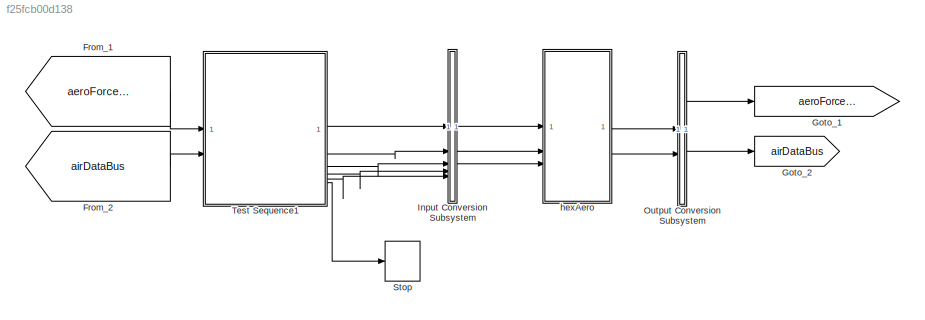
MODEL slx_f25fcb00d138
KIND model
CONFIG AbsTol = auto
CONFIG EnableMultiTasking = off
CONFIG FixedStep = auto
CONFIG MaxStep = auto
CONFIG MinStep = auto
CONFIG RelTol = 1e-3
CONFIG SampleTimeConstraint = Unconstrained
CONFIG SolverName = VariableStepAuto
CONFIG StartTime = 0.0
CONFIG StopTime = inf
BLOCK [From] From_1
  GotoTag = aeroForcesMomentsBus
BLOCK [From] From_2
  GotoTag = airDataBus
BLOCK [Goto] Goto_1
  GotoTag = aeroForcesMomentsBus
BLOCK [Goto] Goto_2
  GotoTag = airDataBus
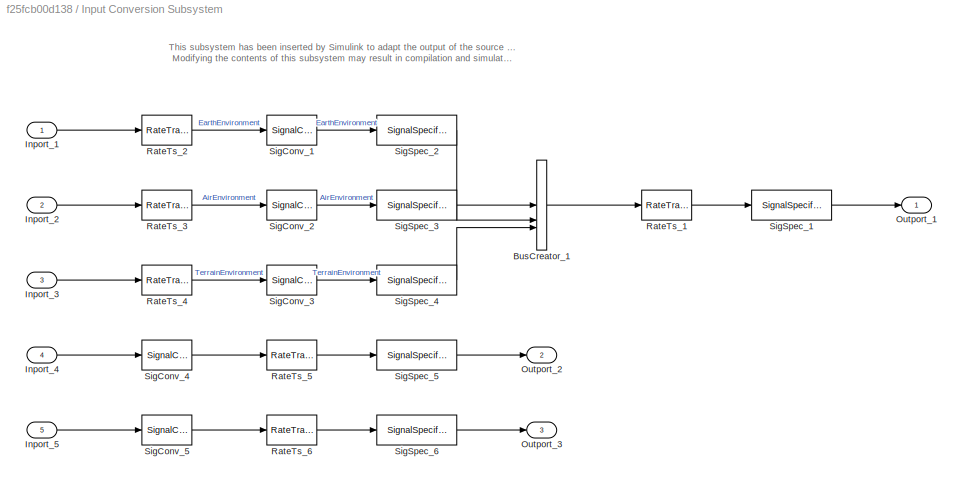
BLOCK [SubSystem] Input Conversion Subsystem
  AttributesFormatString = %<Description>
  Description = Signal spec.\nand routing
  Permissions = ReadOnly
  PermitHierarchicalResolution = ExplicitOnly
  Tag = __SLT_ICS__
  TreatAsGroupedWhenPropagatingVariantConditions = off
  UserDataPersistent = on
BLOCK [BusCreator] Input Conversion Subsystem/BusCreator_1
  InheritFromInputs = on
  Inputs = 3
  OutDataTypeStr = Bus: EnvironmentBus
BLOCK [Inport] Input Conversion Subsystem/Inport_1
BLOCK [Inport] Input Conversion Subsystem/Inport_2
  Port = 2
BLOCK [Inport] Input Conversion Subsystem/Inport_3
  Port = 3
BLOCK [Inport] Input Conversion Subsystem/Inport_4
  Port = 4
BLOCK [Inport] Input Conversion Subsystem/Inport_5
  Port = 5
BLOCK [Outport] Input Conversion Subsystem/Outport_1
BLOCK [Outport] Input Conversion Subsystem/Outport_2
  Port = 2
BLOCK [Outport] Input Conversion Subsystem/Outport_3
  Port = 3
BLOCK [RateTransition] Input Conversion Subsystem/RateTs_1
  OutPortSampleTime = 0.004
BLOCK [RateTransition] Input Conversion Subsystem/RateTs_2
  OutPortSampleTime = 0.004
BLOCK [RateTransition] Input Conversion Subsystem/RateTs_3
  OutPortSampleTime = 0.004
BLOCK [RateTransition] Input Conversion Subsystem/RateTs_4
  OutPortSampleTime = 0.004
BLOCK [RateTransition] Input Conversion Subsystem/RateTs_5
  OutPortSampleTime = 0.004
BLOCK [RateTransition] Input Conversion Subsystem/RateTs_6
  OutPortSampleTime = 0.004
BLOCK [SignalConversion] Input Conversion Subsystem/SigConv_1
  ConversionOutput = Nonvirtual bus
  OverrideOpt = off
BLOCK [SignalConversion] Input Conversion Subsystem/SigConv_2
  ConversionOutput = Nonvirtual bus
  OverrideOpt = off
BLOCK [SignalConversion] Input Conversion Subsystem/SigConv_3
  ConversionOutput = Nonvirtual bus
  OverrideOpt = off
BLOCK [SignalConversion] Input Conversion Subsystem/SigConv_4
  ConversionOutput = Virtual bus
  OverrideOpt = off
BLOCK [SignalConversion] Input Conversion Subsystem/SigConv_5
  ConversionOutput = Virtual bus
  OverrideOpt = off
BLOCK [SignalSpecification] Input Conversion Subsystem/SigSpec_1
  OutDataTypeStr = Bus: EnvironmentBus
  SampleTime = 0.004
BLOCK [SignalSpecification] Input Conversion Subsystem/SigSpec_2
  BusOutputAsStruct = on
  Dimensions = [1]
  OutDataTypeStr = Bus: EarthEnvironmentBus
  SampleTime = 0.004
  SignalType = real
  VarSizeSig = No
BLOCK [SignalSpecification] Input Conversion Subsystem/SigSpec_3
  BusOutputAsStruct = on
  Dimensions = [1]
  OutDataTypeStr = Bus: AirEnvironmentBus
  SampleTime = 0.004
  SignalType = real
  VarSizeSig = No
BLOCK [SignalSpecification] Input Conversion Subsystem/SigSpec_4
  BusOutputAsStruct = on
  Dimensions = [1]
  OutDataTypeStr = Bus: TerrainEnvironmentBus
  SampleTime = 0.004
  SignalType = real
  VarSizeSig = No
BLOCK [SignalSpecification] Input Conversion Subsystem/SigSpec_5
  OutDataTypeStr = Bus: MassPropertiesBus
  SampleTime = 0.004
BLOCK [SignalSpecification] Input Conversion Subsystem/SigSpec_6
  OutDataTypeStr = Bus: BodyStateBus
  SampleTime = 0.004
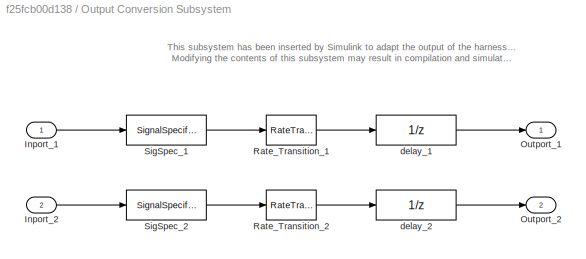
BLOCK [SubSystem] Output Conversion Subsystem
  AttributesFormatString = %<Description>
  Description = Signal spec.\nand routing
  Permissions = ReadOnly
  PermitHierarchicalResolution = ExplicitOnly
  Tag = __SLT_OCS__
  TreatAsGroupedWhenPropagatingVariantConditions = off
  UserDataPersistent = on
BLOCK [Inport] Output Conversion Subsystem/Inport_1
BLOCK [Inport] Output Conversion Subsystem/Inport_2
  Port = 2
BLOCK [Outport] Output Conversion Subsystem/Outport_1
BLOCK [Outport] Output Conversion Subsystem/Outport_2
  Port = 2
BLOCK [RateTransition] Output Conversion Subsystem/Rate_Transition_1
  OutPortSampleTimeOpt = Inherit
BLOCK [RateTransition] Output Conversion Subsystem/Rate_Transition_2
  OutPortSampleTimeOpt = Inherit
BLOCK [SignalSpecification] Output Conversion Subsystem/SigSpec_1
  Dimensions = [1]
  OutDataTypeStr = Bus: ComponentForcesMomentsBus
  SampleTime = 0.004
  SignalType = real
  VarSizeSig = No
BLOCK [SignalSpecification] Output Conversion Subsystem/SigSpec_2
  Dimensions = [1]
  OutDataTypeStr = Bus: AirDataBus
  SampleTime = 0.004
  SignalType = real
  VarSizeSig = No
BLOCK [UnitDelay] Output Conversion Subsystem/delay_1
  InitialCondition = IC1
  SampleTime = -1
BLOCK [UnitDelay] Output Conversion Subsystem/delay_2
  InitialCondition = IC2
  SampleTime = -1
BLOCK [Stop] Stop
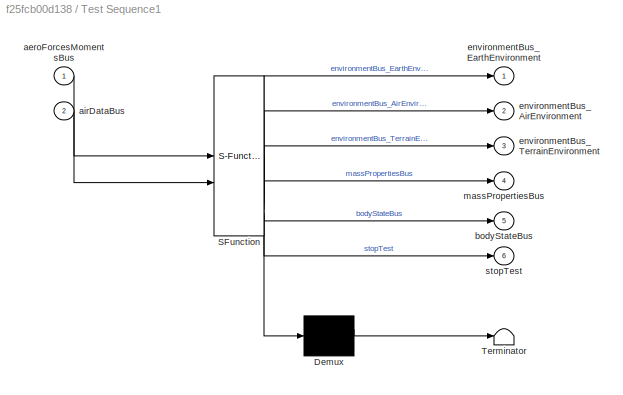
BLOCK [SubSystem] Test Sequence1
  ErrorFcn = Stateflow.Translate.translate
  PermitHierarchicalResolution = ExplicitOnly
  SFBlockType = Test Sequence
  ShowPortLabels = none
  TreatAsAtomicUnit = on
BLOCK [Demux] Test Sequence1/ Demux 
  Outputs = 1
BLOCK [S-Function] Test Sequence1/ SFunction 
  EnableBusSupport = on
  FunctionName = sf_sfun
  Parameters = 1
  PortCounts = [2 7]
  SFcnIsStateOwnerBlock = off
  SFunctionDeploymentMode = off
  Tag = Stateflow S-Function 1
BLOCK [Terminator] Test Sequence1/ Terminator 
BLOCK [Inport] Test Sequence1/aeroForcesMomentsBus
BLOCK [Inport] Test Sequence1/airDataBus
  Port = 2
BLOCK [Outport] Test Sequence1/bodyStateBus
  Port = 5
BLOCK [Outport] Test Sequence1/environmentBus_AirEnvironment
  Port = 2
BLOCK [Outport] Test Sequence1/environmentBus_EarthEnvironment
BLOCK [Outport] Test Sequence1/environmentBus_TerrainEnvironment
  Port = 3
BLOCK [Outport] Test Sequence1/massPropertiesBus
  Port = 4
BLOCK [Outport] Test Sequence1/stopTest
  Port = 6
BLOCK [ModelReference] hexAero
  ModelNameDialog = hexAero
  ModelReferenceVersion = 1.17
ANNOTATION Input Conversion Subsystem: This subsystem has been inserted by Simulink to adapt the output of the source blocks to the interface required by the harnessed component. Modifying the contents of this subsystem may result in compilation and simulation failure.
ANNOTATION Output Conversion Subsystem: This subsystem has been inserted by Simulink to adapt the output of the harnessed component to the interface required by the sink blocks. Modifying the contents of this subsystem may result in compilation and simulation failure.
LINE From_1:1 -> Test Sequence1:1
LINE From_2:1 -> Test Sequence1:2
LINE Input Conversion Subsystem/BusCreator_1:1 -> Input Conversion Subsystem/RateTs_1:1
LINE Input Conversion Subsystem/Inport_1:1 -> Input Conversion Subsystem/RateTs_2:1
LINE Input Conversion Subsystem/Inport_2:1 -> Input Conversion Subsystem/RateTs_3:1
LINE Input Conversion Subsystem/Inport_3:1 -> Input Conversion Subsystem/RateTs_4:1
LINE Input Conversion Subsystem/Inport_4:1 -> Input Conversion Subsystem/SigConv_4:1
LINE Input Conversion Subsystem/Inport_5:1 -> Input Conversion Subsystem/SigConv_5:1
LINE Input Conversion Subsystem/RateTs_1:1 -> Input Conversion Subsystem/SigSpec_1:1
LINE Input Conversion Subsystem/RateTs_2:1 -> Input Conversion Subsystem/SigConv_1:1
LINE Input Conversion Subsystem/RateTs_3:1 -> Input Conversion Subsystem/SigConv_2:1
LINE Input Conversion Subsystem/RateTs_4:1 -> Input Conversion Subsystem/SigConv_3:1
LINE Input Conversion Subsystem/RateTs_5:1 -> Input Conversion Subsystem/SigSpec_5:1
LINE Input Conversion Subsystem/RateTs_6:1 -> Input Conversion Subsystem/SigSpec_6:1
LINE Input Conversion Subsystem/SigConv_1:1 -> Input Conversion Subsystem/SigSpec_2:1
LINE Input Conversion Subsystem/SigConv_2:1 -> Input Conversion Subsystem/SigSpec_3:1
LINE Input Conversion Subsystem/SigConv_3:1 -> Input Conversion Subsystem/SigSpec_4:1
LINE Input Conversion Subsystem/SigConv_4:1 -> Input Conversion Subsystem/RateTs_5:1
LINE Input Conversion Subsystem/SigConv_5:1 -> Input Conversion Subsystem/RateTs_6:1
LINE Input Conversion Subsystem/SigSpec_1:1 -> Input Conversion Subsystem/Outport_1:1
LINE Input Conversion Subsystem/SigSpec_2:1 -> Input Conversion Subsystem/BusCreator_1:1
LINE Input Conversion Subsystem/SigSpec_3:1 -> Input Conversion Subsystem/BusCreator_1:2
LINE Input Conversion Subsystem/SigSpec_4:1 -> Input Conversion Subsystem/BusCreator_1:3
LINE Input Conversion Subsystem/SigSpec_5:1 -> Input Conversion Subsystem/Outport_2:1
LINE Input Conversion Subsystem/SigSpec_6:1 -> Input Conversion Subsystem/Outport_3:1
LINE Input Conversion Subsystem:1 -> hexAero:1
LINE Input Conversion Subsystem:2 -> hexAero:2
LINE Input Conversion Subsystem:3 -> hexAero:3
LINE Output Conversion Subsystem/Inport_1:1 -> Output Conversion Subsystem/SigSpec_1:1
LINE Output Conversion Subsystem/Inport_2:1 -> Output Conversion Subsystem/SigSpec_2:1
LINE Output Conversion Subsystem/Rate_Transition_1:1 -> Output Conversion Subsystem/delay_1:1
LINE Output Conversion Subsystem/Rate_Transition_2:1 -> Output Conversion Subsystem/delay_2:1
LINE Output Conversion Subsystem/SigSpec_1:1 -> Output Conversion Subsystem/Rate_Transition_1:1
LINE Output Conversion Subsystem/SigSpec_2:1 -> Output Conversion Subsystem/Rate_Transition_2:1
LINE Output Conversion Subsystem/delay_1:1 -> Output Conversion Subsystem/Outport_1:1
LINE Output Conversion Subsystem/delay_2:1 -> Output Conversion Subsystem/Outport_2:1
LINE Output Conversion Subsystem:1 -> Goto_1:1
LINE Output Conversion Subsystem:2 -> Goto_2:1
LINE Test Sequence1:1 -> Input Conversion Subsystem:1
LINE Test Sequence1:2 -> Input Conversion Subsystem:2
LINE Test Sequence1:3 -> Input Conversion Subsystem:3
LINE Test Sequence1:4 -> Input Conversion Subsystem:4
LINE Test Sequence1:5 -> Input Conversion Subsystem:5
LINE Test Sequence1:6 -> Stop:1
LINE hexAero:1 -> Output Conversion Subsystem:1
LINE hexAero:2 -> Output Conversion Subsystem:2
CHART Test Sequence1 states=13 transitions=13
  STATE_LABEL 'Scenario_1'
  STATE_LABEL 'Initialize\n\n%% Initialize data outputs.\nenvironmentBus_EarthEnvironment.gravityScalar_mps2 = 0;\nenvironmentBus_EarthEnvironment.worldMagneticFieldInNED_nT = zeros(3,1);\nenvironmentBus_EarthEnvironment.mulh = zeros(3,1);\nenvironmentBus_AirEnvironment.airTemperature_K = 0;\nenvironmentBus_AirEnvironment.airPressure_Pa = 0;\nenvironmentBus_AirEnvironment.airDensity_kgpm3 = 0;\nenvironmentBus_AirEnvironm...<+976ch>'
  STATE_LABEL "SetDnPitchNoYaw\nenvironmentBus_AirEnvironment.airPressure_Pa = 101325;\nenvironmentBus_AirEnvironment.airDensity_kgpm3 = 1.225;\n\nbodyStateBus.aircraftVelInBody_mps = [10 0 -1]';\nyaw = 0;\npitch = -0.1;\neul = [yaw, pitch, 0]; % ZYX order, in radians\nbodyStateBus.DCM_be = eul2rotm(eul, 'ZYX')';"
  STATE_LABEL 'CheckDnPitchNoYaw\n%alpha_rad = -0.1\n%beta_rad = 0\n%FX -\n%FY 0\n%FZ +\n%MX 0\n%MY 0\n%MZ 0\nverify(aeroForcesMomentsBus.forcesInBody_N(1) < 0)\nverify(isClose(aeroForcesMomentsBus.forcesInBody_N(2), 0))\nverify(aeroForcesMomentsBus.forcesInBody_N(3) > 0)\nverify(isClose(aeroForcesMomentsBus.momentsInBody_Nm(1), 0))\nverify(isClose(aeroForcesMomentsBus.momentsInBody_Nm(2), 0))\nverify(isClose(aeroForcesMoment...<+300ch>'
  STATE_LABEL "SetUpPitchNoYaw\nbodyStateBus.aircraftVelInBody_mps = [10 0 1]';\nyaw = 0;\npitch = 0.1;\neul = [yaw, pitch, 0]; % ZYX order, in radians\nbodyStateBus.DCM_be = eul2rotm(eul, 'ZYX')';"
  STATE_LABEL 'CheckUpPitchNoYaw\n%alpha_rad = 0.1\n%beta_rad = 0\n%FX -\n%FY 0\n%FZ -\n%MX 0\n%MY 0\n%MZ 0\nverify(aeroForcesMomentsBus.forcesInBody_N(1) < 0)\nverify(isClose(aeroForcesMomentsBus.forcesInBody_N(2), 0))\nverify(aeroForcesMomentsBus.forcesInBody_N(3) < 0)\nverify(isClose(aeroForcesMomentsBus.momentsInBody_Nm(1), 0))\nverify(isClose(aeroForcesMomentsBus.momentsInBody_Nm(2), 0))\nverify(isClose(aeroForcesMoments...<+297ch>'
  STATE_LABEL "SetDnPitchNoseLeft\nbodyStateBus.aircraftVelInBody_mps = [10 1 -1]';\nyaw = -0.1;\npitch = -0.1;\neul = [yaw, pitch, 0]; % ZYX order, in radians\nbodyStateBus.DCM_be = eul2rotm(eul, 'ZYX')';"
  STATE_LABEL 'CheckDnPitchNoseLeft\n%alpha_rad = -0.1\n%beta_rad = 0.1\n%FX -\n%FY -\n%FZ +\n%MX 0\n%MY 0\n%MZ 0\nverify(aeroForcesMomentsBus.forcesInBody_N(1) < 0)\nverify(aeroForcesMomentsBus.forcesInBody_N(2) < 0)\nverify(aeroForcesMomentsBus.forcesInBody_N(3) > 0)\nverify(isClose(aeroForcesMomentsBus.momentsInBody_Nm(1), 0))\nverify(isClose(aeroForcesMomentsBus.momentsInBody_Nm(2), 0))\nverify(isClose(aeroForcesMomentsBu...<+299ch>'
  STATE_LABEL "SetDnPitchNoseRight\nbodyStateBus.aircraftVelInBody_mps = [10 -1 -1]';\nyaw = 0.1;\npitch = -0.1;\neul = [yaw, pitch, 0]; % ZYX order, in radians\nbodyStateBus.DCM_be = eul2rotm(eul, 'ZYX')';"
  STATE_LABEL 'CheckDnPitchNoseRight\n%alpha_rad = -0.1\n%beta_rad = -0.1\n%FX -\n%FY +\n%FZ +\n%MX 0\n%MY 0\n%MZ 0\nverify(aeroForcesMomentsBus.forcesInBody_N(1) < 0)\nverify(aeroForcesMomentsBus.forcesInBody_N(2) > 0)\nverify(aeroForcesMomentsBus.forcesInBody_N(3) > 0)\nverify(isClose(aeroForcesMomentsBus.momentsInBody_Nm(1), 0))\nverify(isClose(aeroForcesMomentsBus.momentsInBody_Nm(2), 0))\nverify(isClose(aeroForcesMoments...<+303ch>'
  STATE_LABEL "setUpPitchNoseRightAndWind\n% repeat similar tests but add wind\nbodyStateBus.aircraftVelInBody_mps = [0 0 0]';\nyaw = 0.1;\npitch = 0.1;\neul = [yaw, pitch, 0]; % ZYX order, in radians\nbodyStateBus.DCM_be = eul2rotm(eul, 'ZYX')';\nenvironmentBus_AirEnvironment.windSpeedInNED_mps = -[10 0 0 ]';"
  STATE_LABEL 'CheckUpPitchNoseRightWind\n%alpha_rad = 0.1\n%beta_rad = -0.1\n%FX -\n%FY +\n%FZ -\n%MX 0\n%MY 0\n%MZ 0\nverify(aeroForcesMomentsBus.forcesInBody_N(1) < 0)\nverify(aeroForcesMomentsBus.forcesInBody_N(2) > 0)\nverify(aeroForcesMomentsBus.forcesInBody_N(3) < 0)\nverify(isClose(aeroForcesMomentsBus.momentsInBody_Nm(1), 0))\nverify(isClose(aeroForcesMomentsBus.momentsInBody_Nm(2), 0))\nverify(isClose(aeroForcesMome...<+338ch>'
  STATE_LABEL 'EndTest\nstopTest = true;'
  STATE_LABEL '[\ntrue\n]'
  STATE_LABEL '[\nafter(1, sec)\n]'
  STATE_LABEL '[\ntrue\n]'
  STATE_LABEL '[\nafter(1, sec)\n]'
  STATE_LABEL '[\ntrue\n]'
  STATE_LABEL '[\nafter(1, sec)\n]'
  STATE_LABEL '[\ntrue\n]'
  STATE_LABEL '[\nafter(1, sec)\n]'
  STATE_LABEL '[\ntrue\n]'
  STATE_LABEL '[\nafter(1, sec)\n]'
  STATE_LABEL '[\ntrue\n]'
  STATE_LABEL 'Initialize\n\n%% Initialize data outputs.\nenvironmentBus_EarthEnvironment.gravityScalar_mps2 = 0;\nenvironmentBus_EarthEnvironment.worldMagneticFieldInNED_nT = zeros(3,1);\nenvironmentBus_EarthEnvironment.mulh = zeros(3,1);\nenvironmentBus_AirEnvironment.airTemperature_K = 0;\nenvironmentBus_AirEnvironment.airPressure_Pa = 0;\nenvironmentBus_AirEnvironment.airDensity_kgpm3 = 0;\nenvironmentBus_AirEnvironm...<+976ch>'
  STATE_LABEL "SetDnPitchNoYaw\nenvironmentBus_AirEnvironment.airPressure_Pa = 101325;\nenvironmentBus_AirEnvironment.airDensity_kgpm3 = 1.225;\n\nbodyStateBus.aircraftVelInBody_mps = [10 0 -1]';\nyaw = 0;\npitch = -0.1;\neul = [yaw, pitch, 0]; % ZYX order, in radians\nbodyStateBus.DCM_be = eul2rotm(eul, 'ZYX')';"
  STATE_LABEL 'CheckDnPitchNoYaw\n%alpha_rad = -0.1\n%beta_rad = 0\n%FX -\n%FY 0\n%FZ +\n%MX 0\n%MY 0\n%MZ 0\nverify(aeroForcesMomentsBus.forcesInBody_N(1) < 0)\nverify(isClose(aeroForcesMomentsBus.forcesInBody_N(2), 0))\nverify(aeroForcesMomentsBus.forcesInBody_N(3) > 0)\nverify(isClose(aeroForcesMomentsBus.momentsInBody_Nm(1), 0))\nverify(isClose(aeroForcesMomentsBus.momentsInBody_Nm(2), 0))\nverify(isClose(aeroForcesMoment...<+300ch>'
  STATE_LABEL "SetUpPitchNoYaw\nbodyStateBus.aircraftVelInBody_mps = [10 0 1]';\nyaw = 0;\npitch = 0.1;\neul = [yaw, pitch, 0]; % ZYX order, in radians\nbodyStateBus.DCM_be = eul2rotm(eul, 'ZYX')';"
  STATE_LABEL 'CheckUpPitchNoYaw\n%alpha_rad = 0.1\n%beta_rad = 0\n%FX -\n%FY 0\n%FZ -\n%MX 0\n%MY 0\n%MZ 0\nverify(aeroForcesMomentsBus.forcesInBody_N(1) < 0)\nverify(isClose(aeroForcesMomentsBus.forcesInBody_N(2), 0))\nverify(aeroForcesMomentsBus.forcesInBody_N(3) < 0)\nverify(isClose(aeroForcesMomentsBus.momentsInBody_Nm(1), 0))\nverify(isClose(aeroForcesMomentsBus.momentsInBody_Nm(2), 0))\nverify(isClose(aeroForcesMoments...<+297ch>'
  STATE_LABEL "SetDnPitchNoseLeft\nbodyStateBus.aircraftVelInBody_mps = [10 1 -1]';\nyaw = -0.1;\npitch = -0.1;\neul = [yaw, pitch, 0]; % ZYX order, in radians\nbodyStateBus.DCM_be = eul2rotm(eul, 'ZYX')';"
  STATE_LABEL 'CheckDnPitchNoseLeft\n%alpha_rad = -0.1\n%beta_rad = 0.1\n%FX -\n%FY -\n%FZ +\n%MX 0\n%MY 0\n%MZ 0\nverify(aeroForcesMomentsBus.forcesInBody_N(1) < 0)\nverify(aeroForcesMomentsBus.forcesInBody_N(2) < 0)\nverify(aeroForcesMomentsBus.forcesInBody_N(3) > 0)\nverify(isClose(aeroForcesMomentsBus.momentsInBody_Nm(1), 0))\nverify(isClose(aeroForcesMomentsBus.momentsInBody_Nm(2), 0))\nverify(isClose(aeroForcesMomentsBu...<+299ch>'
  STATE_LABEL "SetDnPitchNoseRight\nbodyStateBus.aircraftVelInBody_mps = [10 -1 -1]';\nyaw = 0.1;\npitch = -0.1;\neul = [yaw, pitch, 0]; % ZYX order, in radians\nbodyStateBus.DCM_be = eul2rotm(eul, 'ZYX')';"
  STATE_LABEL 'CheckDnPitchNoseRight\n%alpha_rad = -0.1\n%beta_rad = -0.1\n%FX -\n%FY +\n%FZ +\n%MX 0\n%MY 0\n%MZ 0\nverify(aeroForcesMomentsBus.forcesInBody_N(1) < 0)\nverify(aeroForcesMomentsBus.forcesInBody_N(2) > 0)\nverify(aeroForcesMomentsBus.forcesInBody_N(3) > 0)\nverify(isClose(aeroForcesMomentsBus.momentsInBody_Nm(1), 0))\nverify(isClose(aeroForcesMomentsBus.momentsInBody_Nm(2), 0))\nverify(isClose(aeroForcesMoments...<+303ch>'
  STATE_LABEL "setUpPitchNoseRightAndWind\n% repeat similar tests but add wind\nbodyStateBus.aircraftVelInBody_mps = [0 0 0]';\nyaw = 0.1;\npitch = 0.1;\neul = [yaw, pitch, 0]; % ZYX order, in radians\nbodyStateBus.DCM_be = eul2rotm(eul, 'ZYX')';\nenvironmentBus_AirEnvironment.windSpeedInNED_mps = -[10 0 0 ]';"
  STATE_LABEL 'CheckUpPitchNoseRightWind\n%alpha_rad = 0.1\n%beta_rad = -0.1\n%FX -\n%FY +\n%FZ -\n%MX 0\n%MY 0\n%MZ 0\nverify(aeroForcesMomentsBus.forcesInBody_N(1) < 0)\nverify(aeroForcesMomentsBus.forcesInBody_N(2) > 0)\nverify(aeroForcesMomentsBus.forcesInBody_N(3) < 0)\nverify(isClose(aeroForcesMomentsBus.momentsInBody_Nm(1), 0))\nverify(isClose(aeroForcesMomentsBus.momentsInBody_Nm(2), 0))\nverify(isClose(aeroForcesMome...<+338ch>'
  STATE_LABEL 'EndTest\nstopTest = true;'
